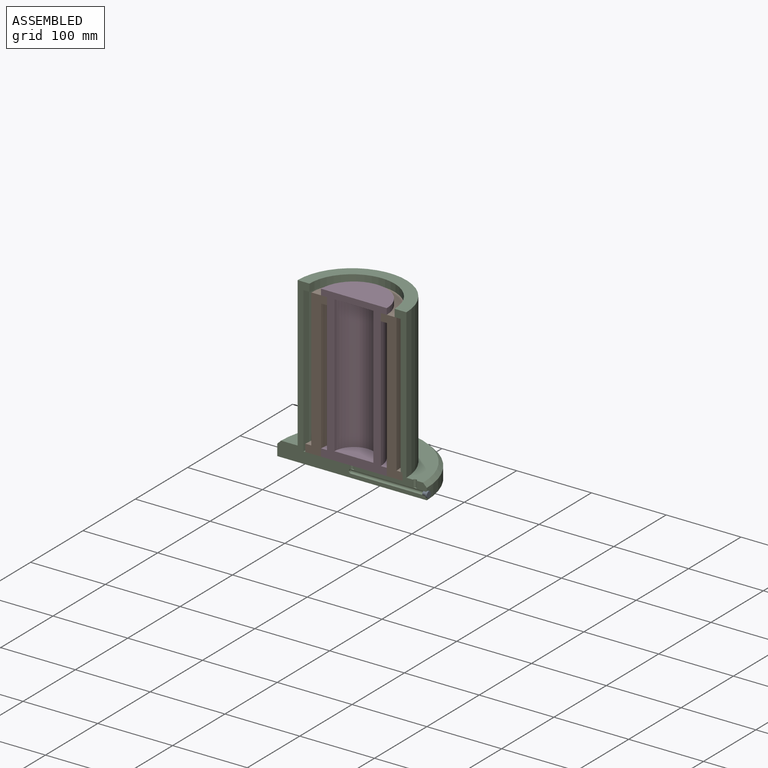
[diagram: assembled view]
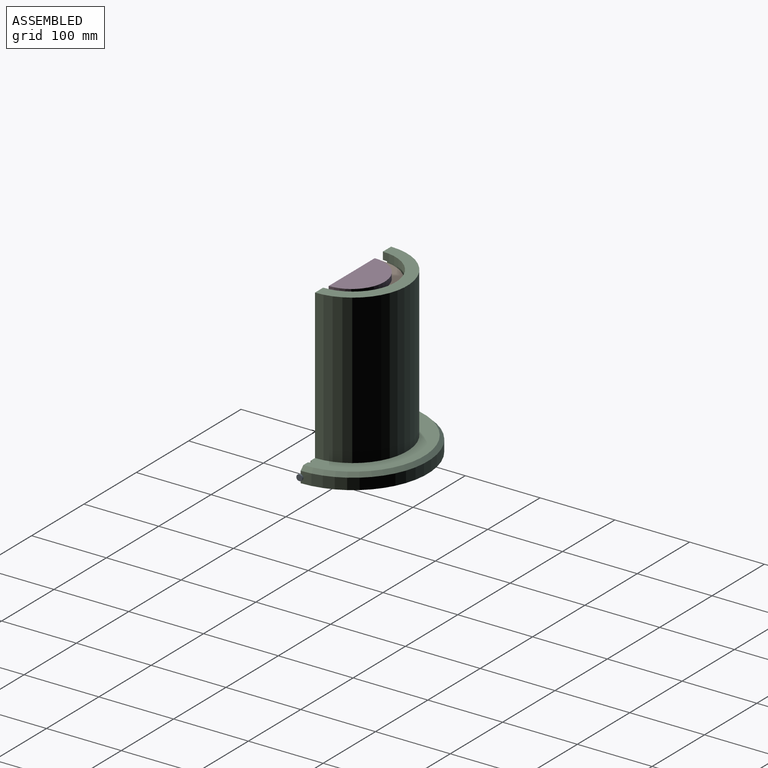
[diagram: assembled view, second angle]
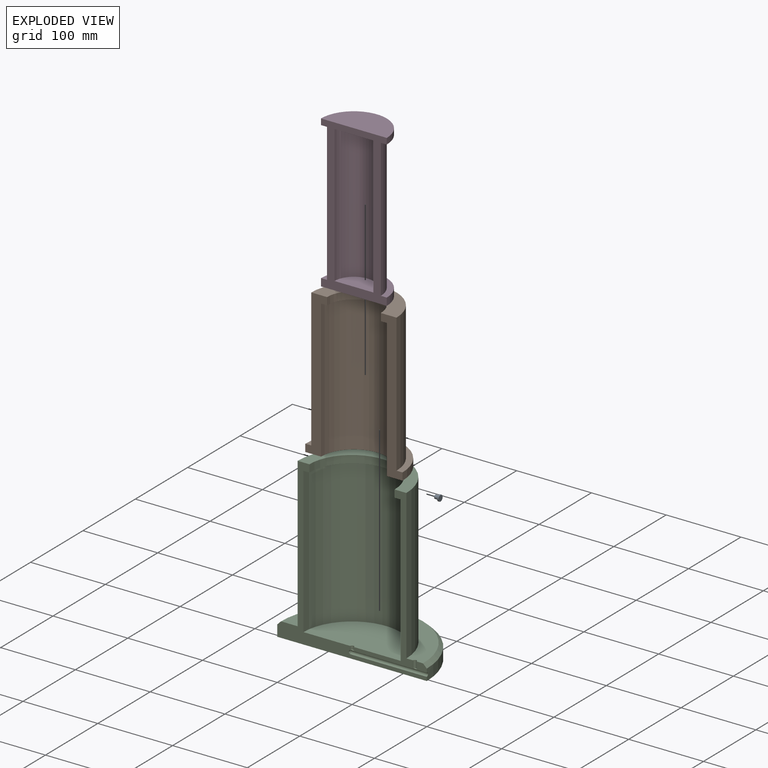
[diagram: exploded view]
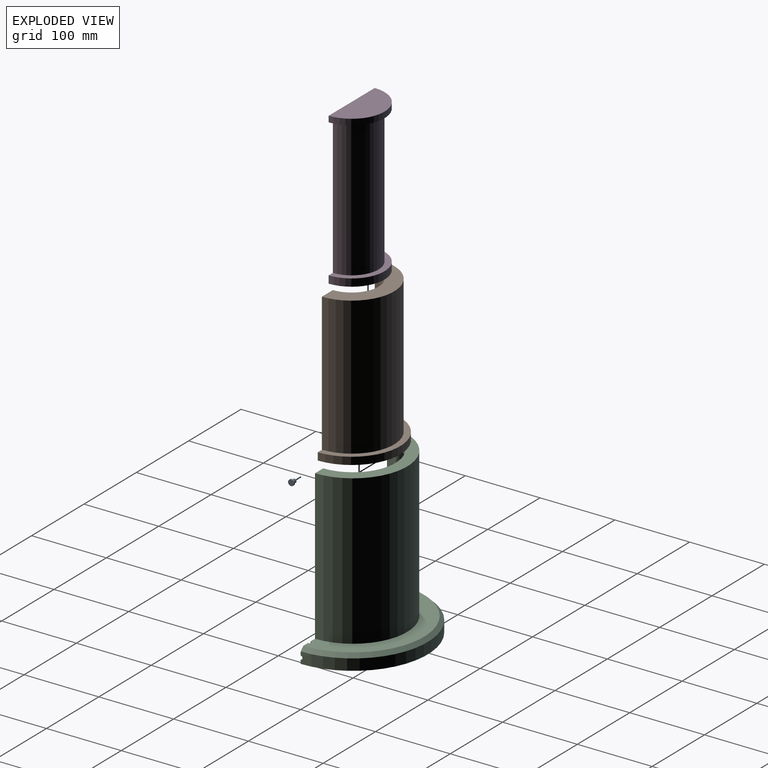
[diagram: exploded view, second angle]
ASSEMBLY  parts=4 mates=3
PART A: 5 faces, bbox 7x8x8 mm
  f0: plane 5x5mm, normal (-1,0,0), area 19.6mm2, adj f4
  f1: plane 8x8mm, normal (1,0,0), area 50.3mm2, adj f2
  f2: cylinder r=4mm len=8mm, axis (-1,0,0), area 50.3mm2, adj f1,f3
  f3: plane 8x8mm, normal (-1,0,0), area 30.6mm2, adj f2,f4
  f4: cylinder r=2.5mm len=5mm, axis (-1,0,0), area 78.5mm2, adj f0,f3
PART B: 10 faces, bbox 130x65x195 mm
  f0: cylinder r=65mm len=130mm, axis (0,0,1), area 2042mm2, adj f1,f7,f8,f9
  f1: plane 130x65mm, normal (0,0,-1), area 3595.6mm2, adj f0,f2,f8,f9
  f2: cylinder r=44mm len=185mm, axis (0,0,1), area 25572.6mm2, adj f1,f3,f8,f9
  f3: plane 88x44mm, normal (0,0,-1), area 1005.3mm2, adj f2,f4,f8,f9
  f4: cylinder r=36mm len=72mm, axis (0,0,1), area 1131mm2, adj f3,f5,f8,f9
  f5: plane 114x57mm, normal (0,0,1), area 3067.8mm2, adj f4,f6,f8,f9
  f6: cylinder r=57mm len=185mm, axis (0,0,1), area 33128.1mm2, adj f5,f7,f8,f9
  f7: plane 130x65mm, normal (0,0,1), area 1533.1mm2, adj f0,f6,f8,f9
  f8: plane 195x29mm, normal (0,-1,0), area 2695mm2, adj f0,f1,f2,f3,f4,f5,f6,f7
  f9: plane 195x29mm, normal (0,-1,0), area 2695mm2, adj f0,f1,f2,f3,f4,f5,f6,f7
PART C: 19 faces, bbox 200x100x220 mm
  f0: plane 13.65x10mm, normal (0,-1,0), area 124mm2, adj f3,f13,f14,f16,f18
  f1: plane 210x78.85mm, normal (0,-1,0), area 2094.7mm2, adj f7,f8,f9,f10,f11,f12,f13,f15
  f2: plane 220x200mm, normal (0,-1,0), area 3750mm2, adj f3,f6,f7,f8,f9,f10,f11,f12
  f3: cylinder r=100mm len=200mm, axis (0,0,1), area 4702.6mm2, adj f0,f2,f6,f14,f18
  f4: cone r=0mm half-angle=59deg, axis (0,0,1), area 4.3mm2, adj f15,f18
  f5: cone r=0mm half-angle=59deg, axis (0,0,1), area 4.3mm2, adj f16,f18
  f6: plane 200x100mm, normal (0,0,-1), area 15708mm2, adj f2,f3
  f7: plane 130x65mm, normal (0,0,1), area 6626.8mm2, adj f1,f2,f8,f15
  f8: cylinder r=65mm len=195mm, axis (0,0,1), area 39819.7mm2, adj f1,f2,f7,f9
  f9: plane 130x65mm, normal (0,0,-1), area 1533.1mm2, adj f1,f2,f8,f10
  f10: cylinder r=57mm len=114mm, axis (0,0,1), area 1790.7mm2, adj f1,f2,f9,f11
  f11: plane 145.39x72.69mm, normal (0,0,1), area 3197.2mm2, adj f1,f2,f10,f12
  f12: cylinder r=72.69mm len=200mm, axis (0,0,1), area 45674.8mm2, adj f1,f2,f11,f13
  f13: plane 190x95mm, normal (0,0,1), area 5865.9mm2, adj f0,f1,f2,f12,f14,f16
  f14: cone r=95mm half-angle=45deg, axis (0,0,-1), area 2165.9mm2, adj f0,f2,f3,f13
  f15: cylinder r=2.5mm len=5mm, axis (0,0,1), area 39.3mm2, adj f1,f2,f4,f7
  f16: cylinder r=2.5mm len=10mm, axis (0,0,1), area 78.5mm2, adj f0,f1,f5,f13
  f17: cone r=0mm half-angle=59deg, axis (1,0,0), area 11.5mm2, adj f2,f18
  f18: cylinder r=2.5mm len=103mm, axis (1,0,0), area 796mm2, adj f0,f1,f2,f3,f4,f5,f17
PART D: 11 faces, bbox 88x44x203 mm
  f0: plane 88x44mm, normal (0,0,1), area 3041.1mm2, adj f1,f10
  f1: cylinder r=44mm len=88mm, axis (0,0,1), area 1105.8mm2, adj f0,f2,f10
  f2: plane 88x44mm, normal (0,0,-1), area 1005.3mm2, adj f1,f3,f10
  f3: cylinder r=36mm len=185mm, axis (0,0,1), area 20923mm2, adj f2,f4,f10
  f4: plane 88x44mm, normal (0,0,1), area 1005.3mm2, adj f3,f5,f10
  f5: cylinder r=44mm len=88mm, axis (0,0,1), area 1382.3mm2, adj f4,f6,f10
  f6: plane 88x44mm, normal (0,0,-1), area 3041.1mm2, adj f5,f10
  f7: plane 52x26mm, normal (0,0,1), area 1061.9mm2, adj f8,f10
  f8: cylinder r=26mm len=183.68mm, axis (0,0,1), area 15002.8mm2, adj f7,f9,f10
  f9: plane 52x26mm, normal (0,0,-1), area 1061.9mm2, adj f8,f10
  f10: plane 203x88mm, normal (0,-1,0), area 5352.9mm2, adj f0,f1,f2,f3,f4,f5,f6,f7
PLACE A t=(95.62,0,7.5)mm
PLACE B t=(2.5,0,15)mm
PLACE C at identity
PLACE D t=(2.5,0,15)mm
MATE slider B.f0 <-> C.f7  axis (0,0,1) through (2.5,0,15)mm
MATE fastened A.f2 <-> C.f17  axis (-1,0,0) through (100.62,0,7.5)mm
MATE slider D.f1 <-> B.f0  axis (0,0,1) through (2.5,0,15)mm
